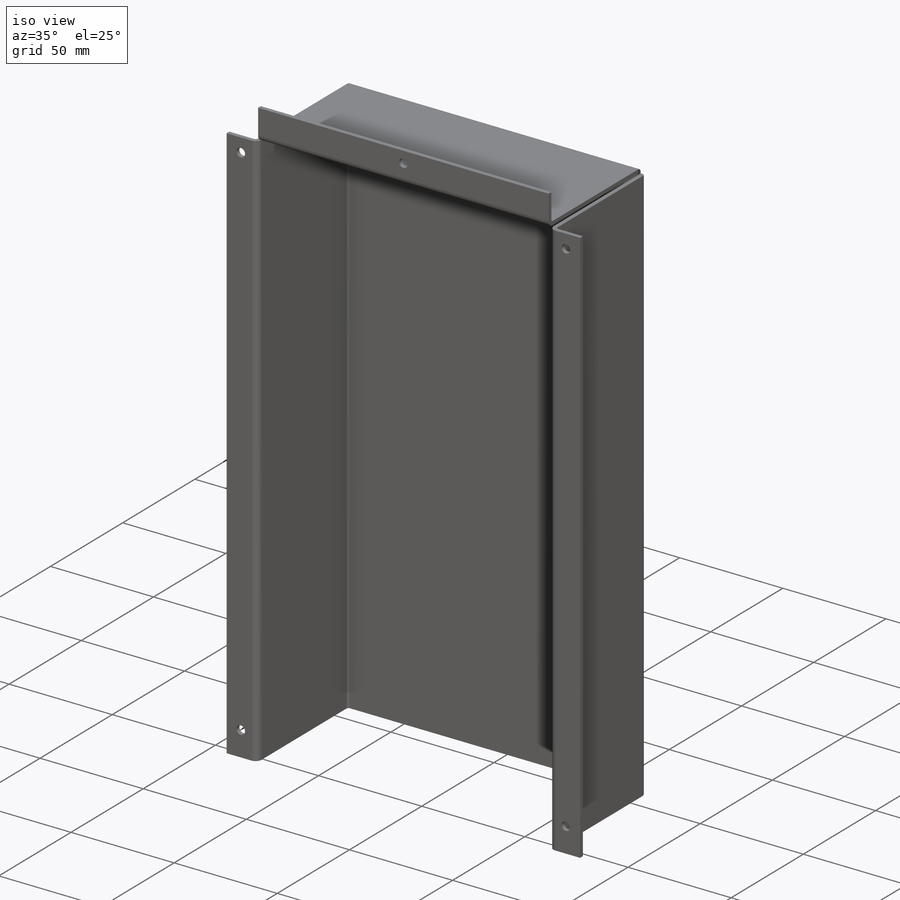
[diagram: iso view]
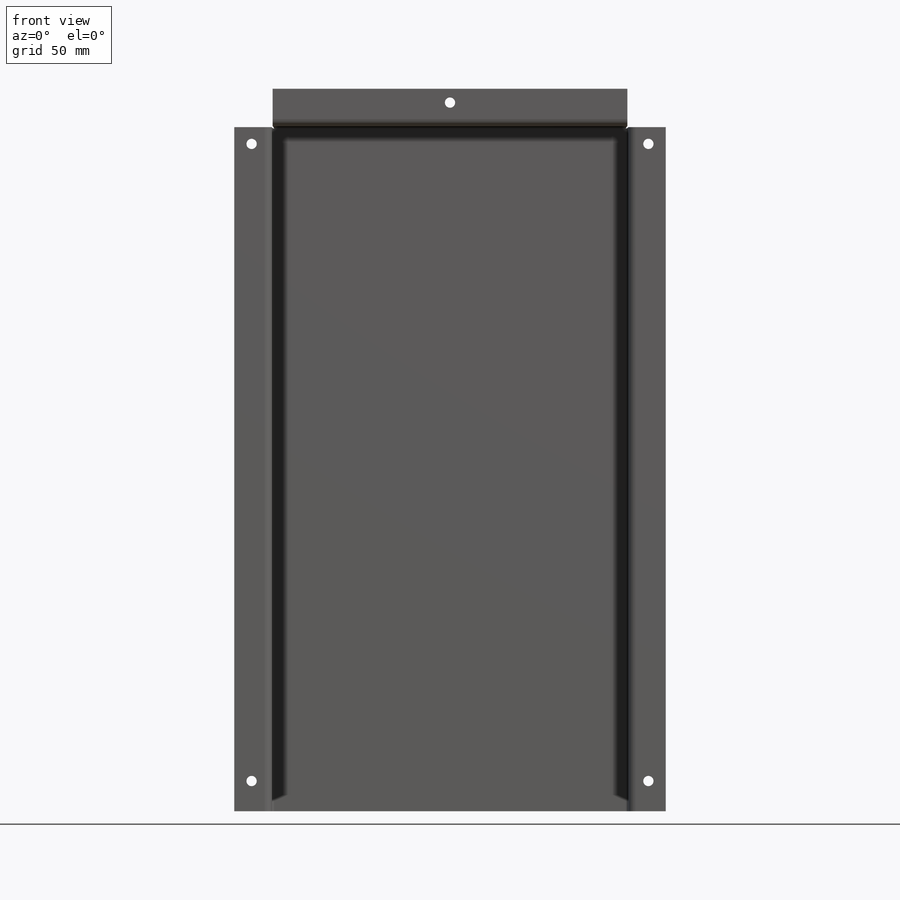
[diagram: front view]
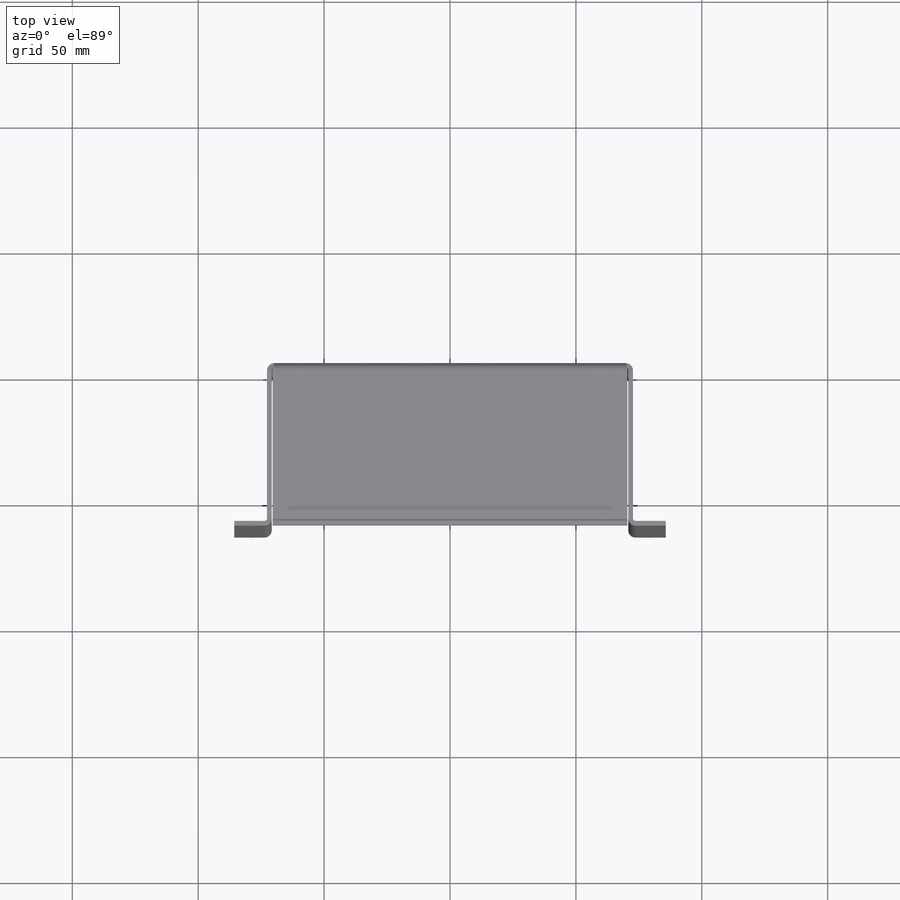
[diagram: top view]
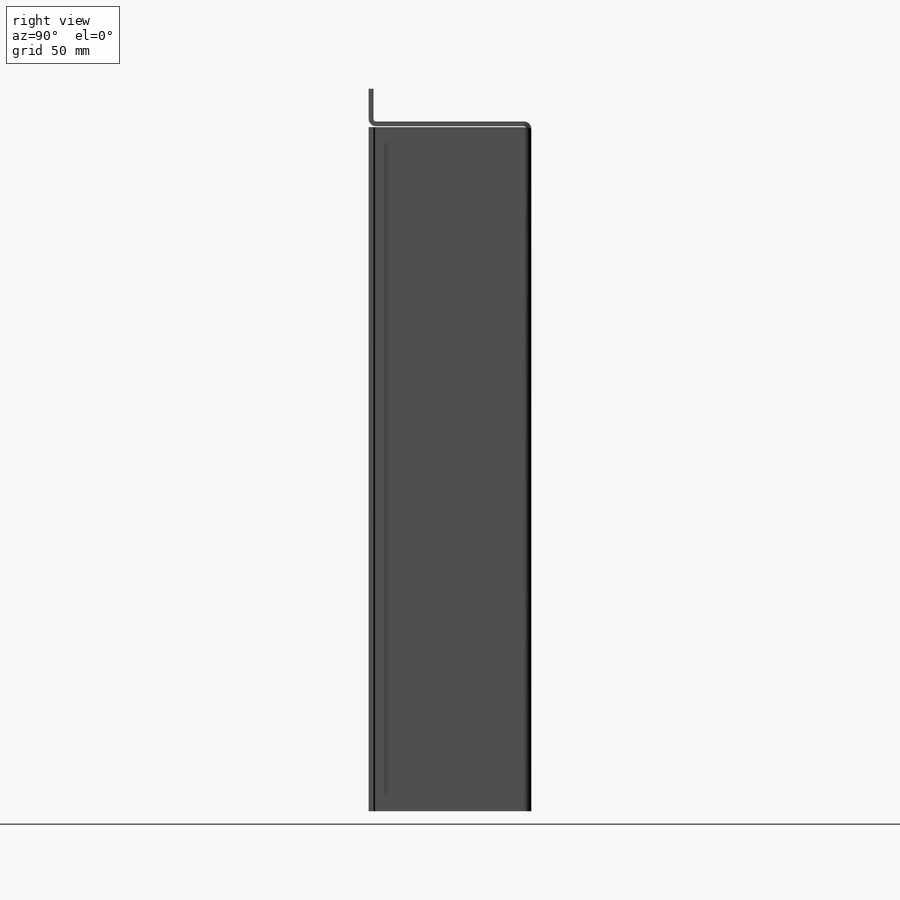
[diagram: right view]
SOLIDWORKS PART (.sldprt)
format: sldprt  version: not decoded by parser v0  size: 443,904 bytes
history: native  units: mm
features: sketch x22, sheet_metal_op x10, cut_extrude x8, material x1 + 19 further entries (+13 scaffold rows collapsed; 6 parser-record rows omitted)
feature tree (79):
  scaffold x13  (default folders/planes/origin — collapsed)
  material  "Material <not specified>"
  sketch  "Sketch1"  dims[c1.D1=340.0mm c1.125=145.0mm c2.D1=1.27mm c2.D2=0.5 c2.D3=0.0mm c2.D6=500.0mm]
  sheet_metal_op  "Base-Flange1"
  sketch  "Sketch12"  dims[D1=70.0mm]
  sketch  "Sketch13"
  sketch  "Sketch14"  dims[c1.D1=70.0mm c2.D1=1.0mm c2.D4=90.0deg c2.D5=1.0 c2.D8=~0.60706mm c2.D9=~0.60706mm]
  sheet_metal_op  "EdgeBend2"
  sheet_metal_op  "EdgeBend3"  Edge-Flange2=0
  sketch  "Sketch22"
  sheet_metal_op  "EdgeBend5"
  sketch  "Sketch24"  dims[c1.D1=4.08mm c1.D3=5.0mm c1.D4=5.0mm c1.D5=5.0mm c1.D6=5.0mm c1.D7=4.08mm c1.D8=5.0mm c1.D2=5.0mm c2.D3=5.0mm c2.D4=5.0mm c2.D5=5.0mm c2.D2=6.0mm c3.D3=6.0mm c3.D4=6.0mm c3.D5=6.0mm c3.D8=12.0mm c3.D2=165.0mm c4.D3=165.0mm c4.D4=253.0mm c4.D5=7.54mm c4.D6=~12.640447mm]
  cut_extrude  "Cut-Extrude1"  Depth=10mm
  sketch  "Sketch25"  dims[D1=25.0mm D2=25.0mm D3=50.0mm]
  cut_extrude  "Cut-Extrude2"  [1 undecoded]
  sketch  "Sketch26"  dims[c1.D1=1.25mm c1.D2=10.0mm c1.D3=2.0mm c2.D2=2.0mm c2.D3=3.0mm c2.D4=10.0mm c2.D5=10.0mm c2.D6=2.0mm c2.D7=3.0mm c2.D8=1.25mm]
  cut_extrude  "Cut-Extrude3"  [1 undecoded]
  sketch  "Bend-Lines1"
  sketch  "Bounding-Box1"
  sheet_metal_op  "Sheet-Metal1"
  "Flat-Pattern1"
  sketch  "Bend-Lines2"
  sketch  "Bounding-Box2"
  parser-record x6  (decoder bookkeeping rows leaked as tree rows — omitted from the tree; the rows remain in map.json)
  cut_extrude  "Sheet-Metal2"  Depth=1mm
  sheet_metal_op  "Flat-Pattern1"
  sketch  "Bend-Lines2"
  sketch  "Bounding-Box2"
  "Flatten-<EdgeBend2>1"
  "Flatten-<EdgeBend3>1"
  cut_extrude  "Sheet-Metal3"  Depth=1mm
  sheet_metal_op  "Flat-Pattern1"
  sketch  "Bend-Lines2"
  sketch  "Bounding-Box2"
  "Flatten-<EdgeBend1>1"
  "Flatten-<EdgeBend2>1"
  "Flatten-<EdgeBend3>1"
  "Flatten-<EdgeBend5>1"
  cut_extrude  "Sheet-Metal4"  Depth=1mm
  sheet_metal_op  "Flat-Pattern1"
  sketch  "Bend-Lines2"
  sketch  "Bounding-Box2"
  "Flatten-<EdgeBend1>1"
  "Flatten-<EdgeBend2>1"
  "Flatten-<EdgeBend3>1"
  "Flatten-<EdgeBend5>1"
  cut_extrude  "Sheet-Metal5"  Depth=1mm
  sheet_metal_op  "Flat-Pattern1"
  sketch  "Bend-Lines2"
  sketch  "Bounding-Box2"
  "Flatten-<EdgeBend1>1"
  "Flatten-<EdgeBend2>1"
  "Flatten-<EdgeBend3>1"
  "Flatten-<EdgeBend5>1"
  cut_extrude  "Sheet-Metal6"  Depth=1mm
  sheet_metal_op  "Flat-Pattern1"
  sketch  "Bend-Lines2"
  sketch  "Bounding-Box2"
  "Flatten-<EdgeBend1>1"
  "Flatten-<EdgeBend2>1"
  "Flatten-<EdgeBend3>1"
  "Flatten-<EdgeBend5>1"
decode coverage: 13 of 40 modeling features carry decoded parameters; 19 rows unclassified (native names shown)
note: ~ marks probable driven/reference dimensions
note: 2 parameter values undecoded
note: suppression state not decoded; provenance and decode notes live in map.json
